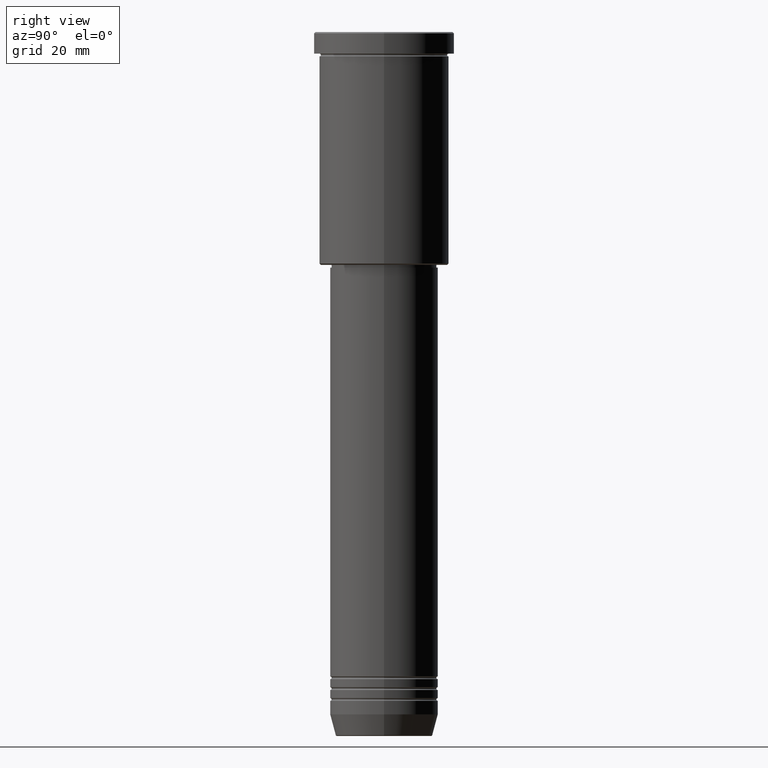
[diagram: clean part render]
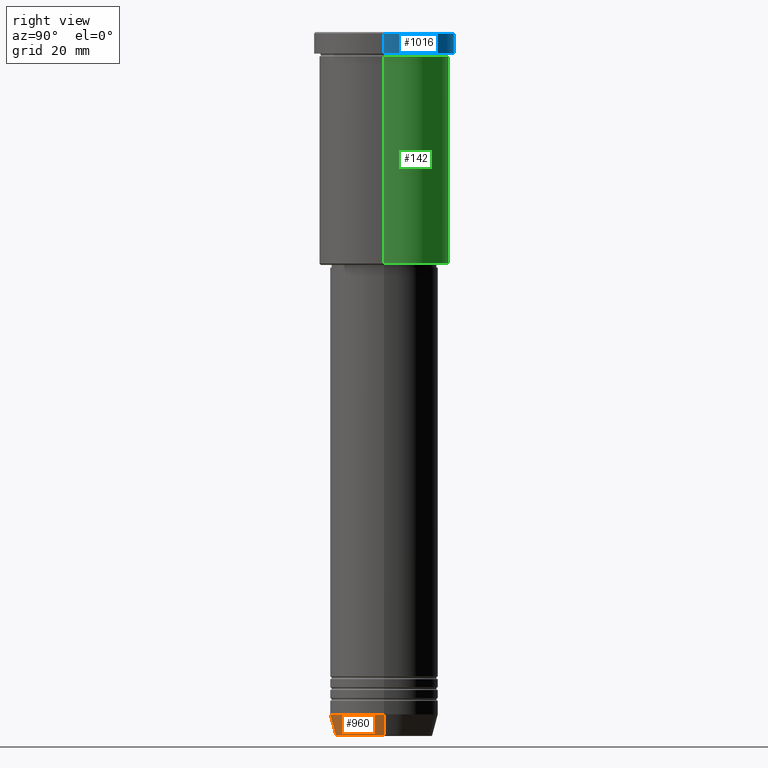
[diagram: same view with three faces highlighted in distinct colors, each labeled with its STEP entity id]
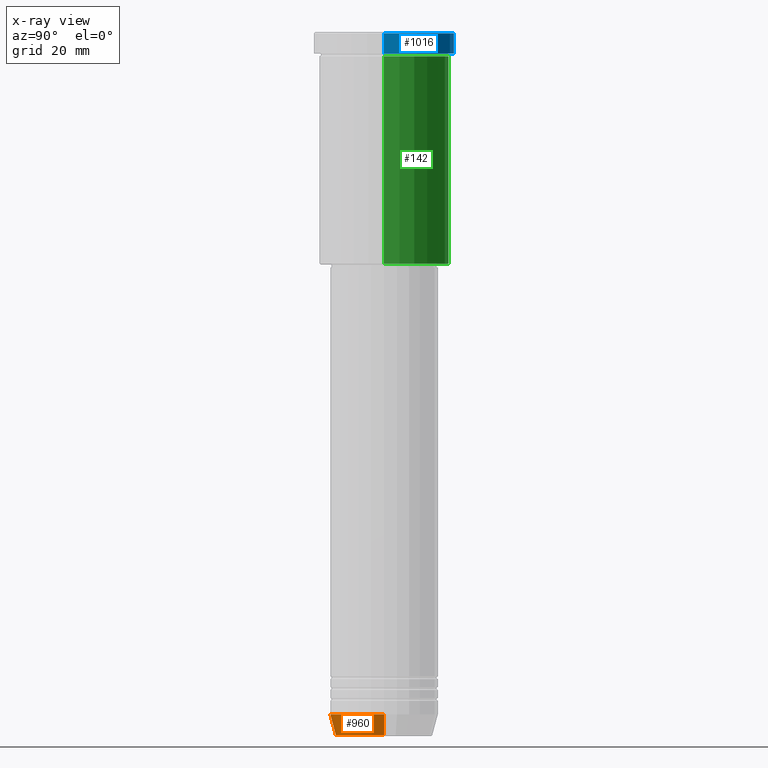
[diagram: x-ray of the same camera — body ghosted, the three highlighted faces saturated]
A machine part, right view with three faces highlighted in distinct colors.
The next image is the same camera in x-ray (body ghosted, the three faces saturated) — at least one of them is partly hidden behind the body in this view.
Their STEP definitions:

[orange] entity #960 — the highlighted conical surface has half-angle 15 deg.
#26 = AXIS2_PLACEMENT_3D ( 'NONE', #505, #657, #962 ) ;
#40 = FACE_OUTER_BOUND ( 'NONE', #396, .T. ) ;
#45 = AXIS2_PLACEMENT_3D ( 'NONE', #840, #769, #751 ) ;
#48 = ORIENTED_EDGE ( 'NONE', *, *, #507, .T. ) ;
#79 = VERTEX_POINT ( 'NONE', #454 ) ;
#150 = DIRECTION ( 'NONE',  ( -0.2588190451025212391, 3.169619151431771721E-17, 0.9659258262890680902 ) ) ;
#180 = EDGE_CURVE ( 'NONE', #181, #613, #802, .T. ) ;
#181 = VERTEX_POINT ( 'NONE', #855 ) ;
#182 = DIRECTION ( 'NONE',  ( 0.2588190451025212391, 0.000000000000000000, 0.9659258262890680902 ) ) ;
#257 = ORIENTED_EDGE ( 'NONE', *, *, #180, .F. ) ;
#265 = CARTESIAN_POINT ( 'NONE',  ( -20.00000000000000355, 2.449293598294706907E-15, -252.0000000000000000 ) ) ;
#291 = VECTOR ( 'NONE', #150, 1000.000000000000114 ) ;
#343 = CARTESIAN_POINT ( 'NONE',  ( 0.000000000000000000, 0.000000000000000000, -259.6294095225512706 ) ) ;
#384 = CARTESIAN_POINT ( 'NONE',  ( 20.00000000000000355, 0.000000000000000000, -252.0000000000000000 ) ) ;
#396 = EDGE_LOOP ( 'NONE', ( #644, #485, #48, #257 ) ) ;
#454 = CARTESIAN_POINT ( 'NONE',  ( 17.95570587970608045, 0.000000000000000000, -259.6294095225512706 ) ) ;
#485 = ORIENTED_EDGE ( 'NONE', *, *, #1076, .T. ) ;
#505 = CARTESIAN_POINT ( 'NONE',  ( 0.000000000000000000, 0.000000000000000000, -252.0000000000000000 ) ) ;
#507 = EDGE_CURVE ( 'NONE', #79, #613, #818, .T. ) ;
#604 = VERTEX_POINT ( 'NONE', #831 ) ;
#613 = VERTEX_POINT ( 'NONE', #384 ) ;
#632 = CARTESIAN_POINT ( 'NONE',  ( 20.00000000000000355, 0.000000000000000000, -252.0000000000000000 ) ) ;
#644 = ORIENTED_EDGE ( 'NONE', *, *, #900, .F. ) ;
#657 = DIRECTION ( 'NONE',  ( -0.000000000000000000, -0.000000000000000000, 1.000000000000000000 ) ) ;
#708 = DIRECTION ( 'NONE',  ( -0.000000000000000000, -0.000000000000000000, 1.000000000000000000 ) ) ;
#715 = LINE ( 'NONE', #265, #291 ) ;
#751 = DIRECTION ( 'NONE',  ( 1.000000000000000000, 0.000000000000000000, 0.000000000000000000 ) ) ;
#769 = DIRECTION ( 'NONE',  ( -0.000000000000000000, -0.000000000000000000, 1.000000000000000000 ) ) ;
#802 = CIRCLE ( 'NONE', #45, 20.00000000000000355 ) ;
#818 = LINE ( 'NONE', #632, #1097 ) ;
#831 = CARTESIAN_POINT ( 'NONE',  ( -17.95570587970608045, 2.324116685748021371E-15, -259.6294095225512706 ) ) ;
#840 = CARTESIAN_POINT ( 'NONE',  ( 0.000000000000000000, 0.000000000000000000, -252.0000000000000000 ) ) ;
#855 = CARTESIAN_POINT ( 'NONE',  ( -20.00000000000000355, 2.449293598294706907E-15, -252.0000000000000000 ) ) ;
#900 = EDGE_CURVE ( 'NONE', #604, #181, #715, .T. ) ;
#908 = CONICAL_SURFACE ( 'NONE', #26, 20.00000000000000355, 0.2617993877991499629 ) ;
#931 = AXIS2_PLACEMENT_3D ( 'NONE', #343, #708, #1065 ) ;
#960 = ADVANCED_FACE ( 'NONE', ( #40 ), #908, .T. ) ;
#962 = DIRECTION ( 'NONE',  ( 1.000000000000000000, 0.000000000000000000, 0.000000000000000000 ) ) ;
#1065 = DIRECTION ( 'NONE',  ( 1.000000000000000000, 0.000000000000000000, 0.000000000000000000 ) ) ;
#1076 = EDGE_CURVE ( 'NONE', #604, #79, #1156, .T. ) ;
#1097 = VECTOR ( 'NONE', #182, 1000.000000000000114 ) ;
#1156 = CIRCLE ( 'NONE', #931, 17.95570587970608045 ) ;

[blue] entity #1016 — the highlighted cylindrical surface (partial cylindrical patch) has radius 26 mm, axis along (-0, -0, 1).
#6 = EDGE_CURVE ( 'NONE', #630, #248, #283, .T. ) ;
#47 = AXIS2_PLACEMENT_3D ( 'NONE', #978, #600, #88 ) ;
#88 = DIRECTION ( 'NONE',  ( 1.000000000000000000, 0.000000000000000000, 0.000000000000000000 ) ) ;
#143 = LINE ( 'NONE', #496, #668 ) ;
#220 = AXIS2_PLACEMENT_3D ( 'NONE', #896, #891, #1085 ) ;
#248 = VERTEX_POINT ( 'NONE', #494 ) ;
#270 = CARTESIAN_POINT ( 'NONE',  ( 26.00000000000000000, 0.000000000000000000, -0.5000000000000247580 ) ) ;
#283 = LINE ( 'NONE', #819, #1018 ) ;
#337 = CYLINDRICAL_SURFACE ( 'NONE', #220, 26.00000000000000000 ) ;
#347 = CIRCLE ( 'NONE', #786, 26.00000000000000000 ) ;
#478 = VERTEX_POINT ( 'NONE', #270 ) ;
#494 = CARTESIAN_POINT ( 'NONE',  ( -26.00000000000000000, 3.184081677783118191E-15, -0.5000000000000247580 ) ) ;
#496 = CARTESIAN_POINT ( 'NONE',  ( 26.00000000000000000, 0.000000000000000000, 0.000000000000000000 ) ) ;
#503 = CIRCLE ( 'NONE', #47, 26.00000000000000000 ) ;
#546 = EDGE_LOOP ( 'NONE', ( #930, #939, #1119, #659 ) ) ;
#600 = DIRECTION ( 'NONE',  ( 0.000000000000000000, 0.000000000000000000, -1.000000000000000000 ) ) ;
#626 = DIRECTION ( 'NONE',  ( -0.000000000000000000, -0.000000000000000000, 1.000000000000000000 ) ) ;
#630 = VERTEX_POINT ( 'NONE', #853 ) ;
#659 = ORIENTED_EDGE ( 'NONE', *, *, #1009, .F. ) ;
#668 = VECTOR ( 'NONE', #983, 1000.000000000000000 ) ;
#748 = EDGE_CURVE ( 'NONE', #1136, #630, #347, .T. ) ;
#777 = FACE_OUTER_BOUND ( 'NONE', #546, .T. ) ;
#786 = AXIS2_PLACEMENT_3D ( 'NONE', #909, #1062, #1067 ) ;
#797 = EDGE_CURVE ( 'NONE', #248, #478, #503, .T. ) ;
#819 = CARTESIAN_POINT ( 'NONE',  ( -26.00000000000000000, 3.184081677783118191E-15, 0.000000000000000000 ) ) ;
#853 = CARTESIAN_POINT ( 'NONE',  ( -26.00000000000000000, 3.184081677783118191E-15, -7.999999999999992895 ) ) ;
#891 = DIRECTION ( 'NONE',  ( -0.000000000000000000, -0.000000000000000000, 1.000000000000000000 ) ) ;
#896 = CARTESIAN_POINT ( 'NONE',  ( 0.000000000000000000, 0.000000000000000000, 0.000000000000000000 ) ) ;
#909 = CARTESIAN_POINT ( 'NONE',  ( 0.000000000000000000, 0.000000000000000000, -7.999999999999992895 ) ) ;
#930 = ORIENTED_EDGE ( 'NONE', *, *, #748, .T. ) ;
#939 = ORIENTED_EDGE ( 'NONE', *, *, #6, .T. ) ;
#978 = CARTESIAN_POINT ( 'NONE',  ( 0.000000000000000000, 0.000000000000000000, -0.5000000000000247580 ) ) ;
#983 = DIRECTION ( 'NONE',  ( -0.000000000000000000, -0.000000000000000000, 1.000000000000000000 ) ) ;
#1009 = EDGE_CURVE ( 'NONE', #1136, #478, #143, .T. ) ;
#1011 = CARTESIAN_POINT ( 'NONE',  ( 26.00000000000000000, 0.000000000000000000, -7.999999999999992895 ) ) ;
#1016 = ADVANCED_FACE ( 'NONE', ( #777 ), #337, .T. ) ;
#1018 = VECTOR ( 'NONE', #626, 1000.000000000000000 ) ;
#1062 = DIRECTION ( 'NONE',  ( -0.000000000000000000, -0.000000000000000000, 1.000000000000000000 ) ) ;
#1067 = DIRECTION ( 'NONE',  ( 1.000000000000000000, 0.000000000000000000, 0.000000000000000000 ) ) ;
#1085 = DIRECTION ( 'NONE',  ( 1.000000000000000000, 0.000000000000000000, 0.000000000000000000 ) ) ;
#1119 = ORIENTED_EDGE ( 'NONE', *, *, #797, .T. ) ;
#1136 = VERTEX_POINT ( 'NONE', #1011 ) ;

[green] entity #142 — the highlighted cylindrical surface (partial cylindrical patch) has radius 24 mm, axis along (-0, -0, 1).
#17 = CYLINDRICAL_SURFACE ( 'NONE', #310, 24.00000000000000000 ) ;
#63 = VECTOR ( 'NONE', #300, 1000.000000000000000 ) ;
#84 = AXIS2_PLACEMENT_3D ( 'NONE', #742, #115, #475 ) ;
#94 = EDGE_CURVE ( 'NONE', #158, #413, #215, .T. ) ;
#115 = DIRECTION ( 'NONE',  ( -0.000000000000000000, -0.000000000000000000, 1.000000000000000000 ) ) ;
#142 = ADVANCED_FACE ( 'NONE', ( #655 ), #17, .T. ) ;
#158 = VERTEX_POINT ( 'NONE', #755 ) ;
#162 = CARTESIAN_POINT ( 'NONE',  ( 24.00000000000000000, 0.000000000000000000, 0.000000000000000000 ) ) ;
#209 = CARTESIAN_POINT ( 'NONE',  ( -24.00000000000000000, 2.939152317953647894E-15, -85.49999999999995737 ) ) ;
#213 = ORIENTED_EDGE ( 'NONE', *, *, #94, .F. ) ;
#215 = CIRCLE ( 'NONE', #1168, 24.00000000000000000 ) ;
#216 = CARTESIAN_POINT ( 'NONE',  ( 0.000000000000000000, 0.000000000000000000, 0.000000000000000000 ) ) ;
#278 = CARTESIAN_POINT ( 'NONE',  ( 0.000000000000000000, 0.000000000000000000, -8.999999999999994671 ) ) ;
#300 = DIRECTION ( 'NONE',  ( -0.000000000000000000, -0.000000000000000000, 1.000000000000000000 ) ) ;
#310 = AXIS2_PLACEMENT_3D ( 'NONE', #216, #1034, #580 ) ;
#348 = EDGE_CURVE ( 'NONE', #807, #158, #423, .T. ) ;
#413 = VERTEX_POINT ( 'NONE', #979 ) ;
#423 = LINE ( 'NONE', #162, #682 ) ;
#435 = CARTESIAN_POINT ( 'NONE',  ( 24.00000000000000000, 0.000000000000000000, -85.49999999999995737 ) ) ;
#475 = DIRECTION ( 'NONE',  ( -1.000000000000000000, 0.000000000000000000, 0.000000000000000000 ) ) ;
#512 = CARTESIAN_POINT ( 'NONE',  ( -24.00000000000000000, 2.939152317953647894E-15, 0.000000000000000000 ) ) ;
#525 = ORIENTED_EDGE ( 'NONE', *, *, #835, .T. ) ;
#580 = DIRECTION ( 'NONE',  ( 1.000000000000000000, 0.000000000000000000, 0.000000000000000000 ) ) ;
#597 = LINE ( 'NONE', #512, #63 ) ;
#605 = DIRECTION ( 'NONE',  ( -0.000000000000000000, -0.000000000000000000, 1.000000000000000000 ) ) ;
#651 = VERTEX_POINT ( 'NONE', #209 ) ;
#655 = FACE_OUTER_BOUND ( 'NONE', #873, .T. ) ;
#682 = VECTOR ( 'NONE', #605, 1000.000000000000000 ) ;
#742 = CARTESIAN_POINT ( 'NONE',  ( 0.000000000000000000, 0.000000000000000000, -85.49999999999995737 ) ) ;
#744 = ORIENTED_EDGE ( 'NONE', *, *, #348, .F. ) ;
#755 = CARTESIAN_POINT ( 'NONE',  ( 24.00000000000000000, 0.000000000000000000, -8.999999999999994671 ) ) ;
#807 = VERTEX_POINT ( 'NONE', #435 ) ;
#824 = CIRCLE ( 'NONE', #84, 24.00000000000000000 ) ;
#835 = EDGE_CURVE ( 'NONE', #807, #651, #824, .T. ) ;
#838 = ORIENTED_EDGE ( 'NONE', *, *, #937, .T. ) ;
#873 = EDGE_LOOP ( 'NONE', ( #525, #838, #213, #744 ) ) ;
#935 = DIRECTION ( 'NONE',  ( 1.000000000000000000, 0.000000000000000000, 0.000000000000000000 ) ) ;
#937 = EDGE_CURVE ( 'NONE', #651, #413, #597, .T. ) ;
#979 = CARTESIAN_POINT ( 'NONE',  ( -24.00000000000000000, 2.939152317953647894E-15, -8.999999999999994671 ) ) ;
#1019 = DIRECTION ( 'NONE',  ( -0.000000000000000000, -0.000000000000000000, 1.000000000000000000 ) ) ;
#1034 = DIRECTION ( 'NONE',  ( -0.000000000000000000, -0.000000000000000000, 1.000000000000000000 ) ) ;
#1168 = AXIS2_PLACEMENT_3D ( 'NONE', #278, #1019, #935 ) ;